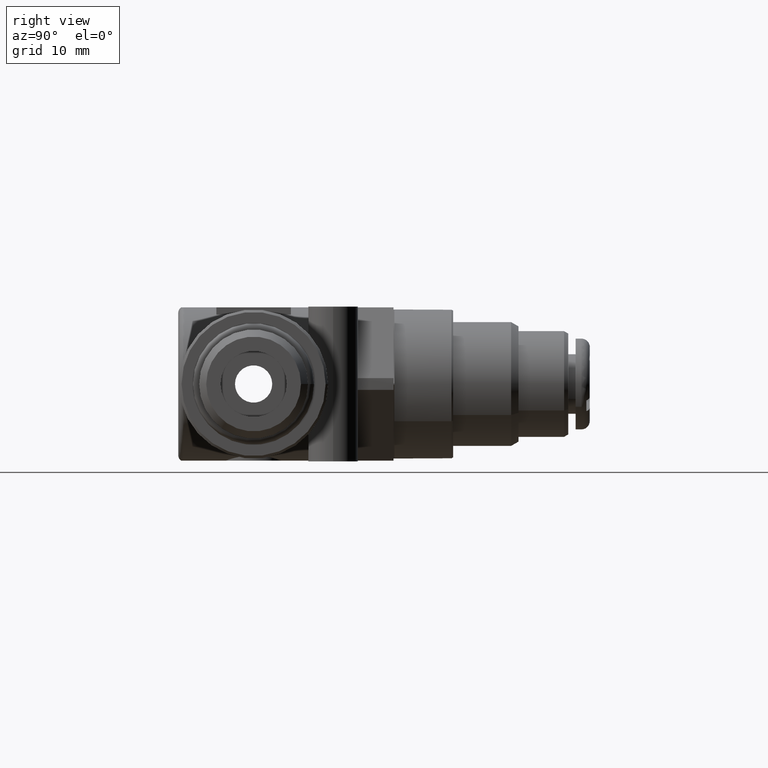
[diagram: clean part render]
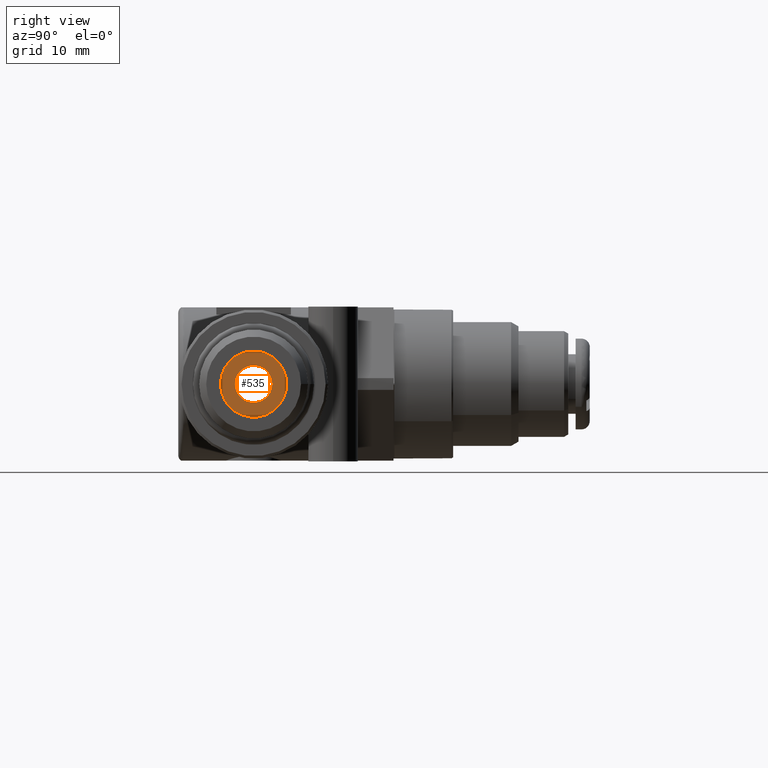
[diagram: same view with one face highlighted and labeled with its STEP entity id]
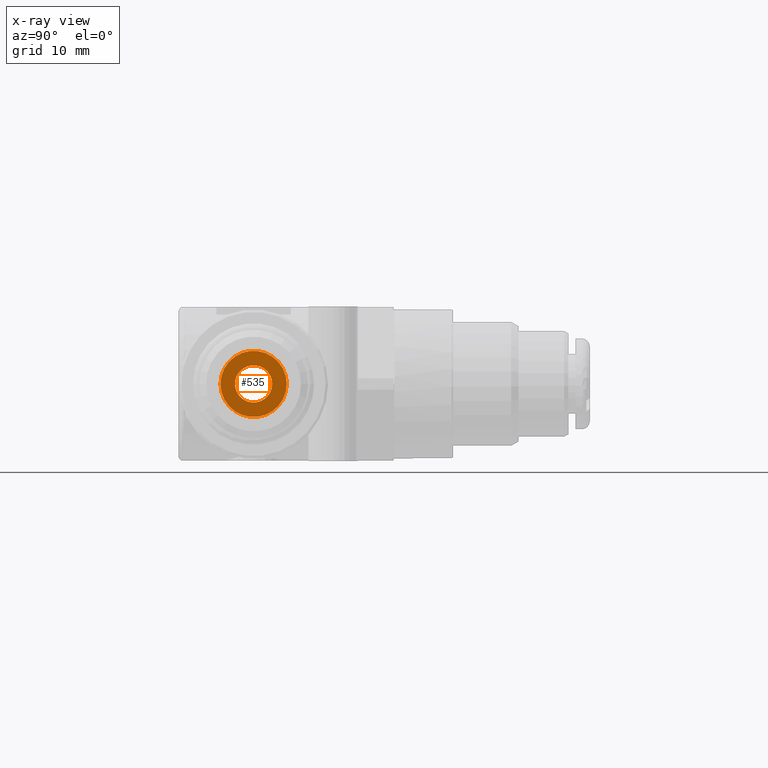
[diagram: x-ray of the same camera — body ghosted, the highlighted face saturated]
A machine part, right view. The second image highlights one B-rep face of the part: STEP entity #535.
The next image is the same camera in x-ray: the body ghosted, the highlighted face saturated — about 0% of this face is hidden behind the body in this view.
In plain terms, the highlighted planar face has unit normal (1, 0, -0).
Its self-contained STEP definition (entity closure, byte-faithful):
#535 = ADVANCED_FACE( '', ( #1126, #1127 ), #1128, .T. );
#1126 = FACE_BOUND( '', #1797, .T. );
#1127 = FACE_OUTER_BOUND( '', #1798, .T. );
#1128 = PLANE( '', #1799 );
#1797 = EDGE_LOOP( '', ( #2934 ) );
#1798 = EDGE_LOOP( '', ( #2935 ) );
#1799 = AXIS2_PLACEMENT_3D( '', #2936, #2937, #2938 );
#2934 = ORIENTED_EDGE( '', *, *, #3950, .T. );
#2935 = ORIENTED_EDGE( '', *, *, #3951, .F. );
#2936 = CARTESIAN_POINT( '', ( -2.00000000000000, 4.00000000000000, 0.000000000000000 ) );
#2937 = DIRECTION( '', ( -1.00000000000000, 0.000000000000000, 0.000000000000000 ) );
#2938 = DIRECTION( '', ( 0.000000000000000, 0.000000000000000, 1.00000000000000 ) );
#3950 = EDGE_CURVE( '', #4738, #4738, #4739, .T. );
#3951 = EDGE_CURVE( '', #4740, #4740, #4741, .T. );
#4738 = VERTEX_POINT( '', #5992 );
#4739 = CIRCLE( '', #5993, 2.25000000000000 );
#4740 = VERTEX_POINT( '', #5994 );
#4741 = CIRCLE( '', #5995, 4.00000000000000 );
#5992 = CARTESIAN_POINT( '', ( -2.00000000000000, 0.000000000000000, -2.25000000000000 ) );
#5993 = AXIS2_PLACEMENT_3D( '', #7156, #7157, #7158 );
#5994 = CARTESIAN_POINT( '', ( -2.00000000000000, 0.000000000000000, -4.00000000000000 ) );
#5995 = AXIS2_PLACEMENT_3D( '', #7159, #7160, #7161 );
#7156 = CARTESIAN_POINT( '', ( -2.00000000000000, 0.000000000000000, 0.000000000000000 ) );
#7157 = DIRECTION( '', ( 1.00000000000000, 0.000000000000000, -0.000000000000000 ) );
#7158 = DIRECTION( '', ( -0.000000000000000, 0.000000000000000, -1.00000000000000 ) );
#7159 = CARTESIAN_POINT( '', ( -2.00000000000000, 0.000000000000000, 0.000000000000000 ) );
#7160 = DIRECTION( '', ( 1.00000000000000, 0.000000000000000, -0.000000000000000 ) );
#7161 = DIRECTION( '', ( -0.000000000000000, 0.000000000000000, -1.00000000000000 ) );